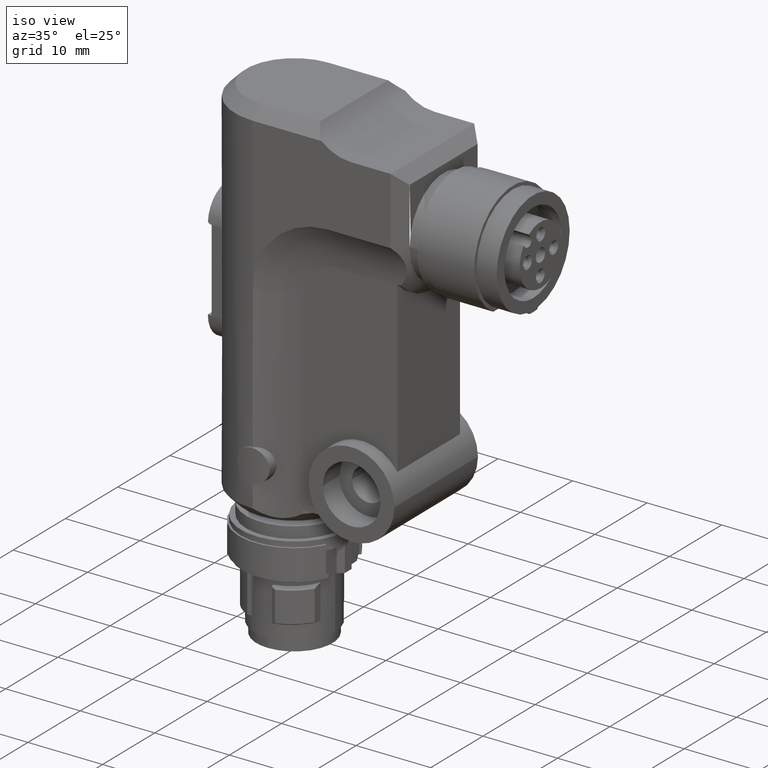
[diagram: clean part render]
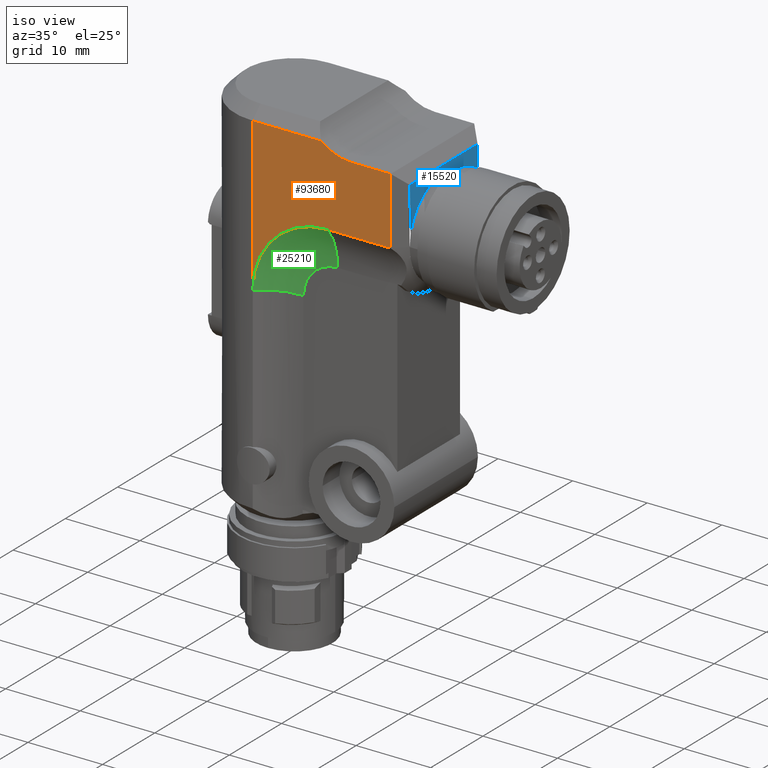
[diagram: same view with three faces highlighted in distinct colors, each labeled with its STEP entity id]
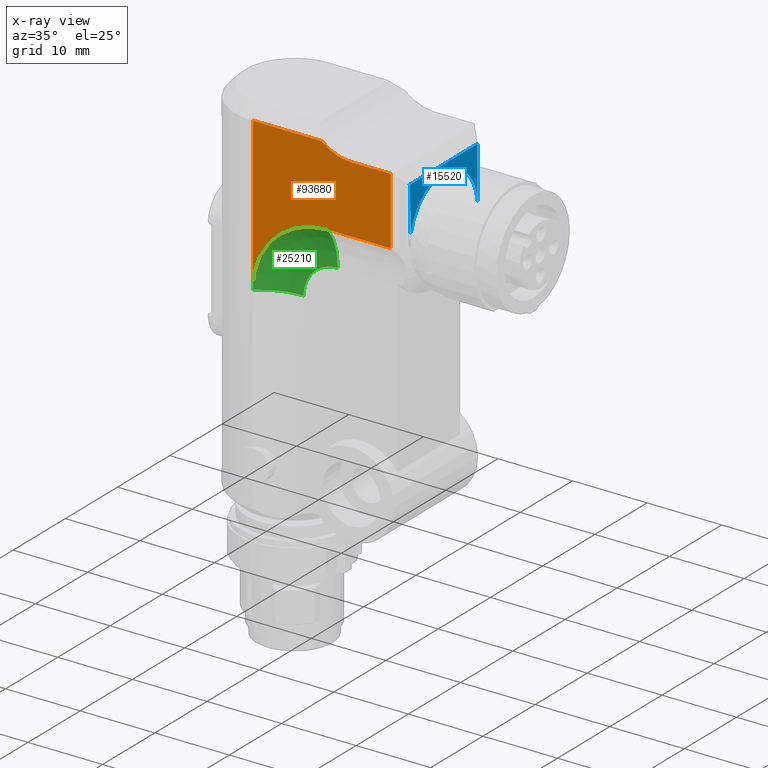
[diagram: x-ray of the same camera — body ghosted, the three highlighted faces saturated]
A machine part, iso view with three faces highlighted in distinct colors.
The next image is the same camera in x-ray (body ghosted, the three faces saturated) — at least one of them is partly hidden behind the body in this view.
Their STEP definitions:

[orange] entity #93680 — the highlighted planar face has unit normal (0, -1, 0).
#4860=CARTESIAN_POINT('',(8.,3.5527136788005E-15,0.));
#4870=DIRECTION('',(0.,0.,-1.));
#4880=VECTOR('',#4870,1.);
#4890=LINE('',#4860,#4880);
#4900=CARTESIAN_POINT('',(8.,5.28330100839187E-15,48.5));
#4910=VERTEX_POINT('',#4900);
#4920=CARTESIAN_POINT('',(8.,1.95399252334028E-14,28.0000000000002));
#4930=VERTEX_POINT('',#4920);
#4940=EDGE_CURVE('',#4910,#4930,#4890,.T.);
#9790=CARTESIAN_POINT('',(8.,18.5,38.));
#9800=VERTEX_POINT('',#9790);
#9830=CARTESIAN_POINT('',(8.,18.5,0.));
#9840=DIRECTION('',(0.,0.,-1.));
#9850=VECTOR('',#9840,1.);
#9860=LINE('',#9830,#9850);
#9870=CARTESIAN_POINT('',(8.,18.5,47.));
#9880=VERTEX_POINT('',#9870);
#9890=EDGE_CURVE('',#9880,#9800,#9860,.T.);
#18730=CARTESIAN_POINT('',(8.,13.1961524227066,47.));
#18740=VERTEX_POINT('',#18730);
#18860=CARTESIAN_POINT('',(8.,0.,47.));
#18870=DIRECTION('',(0.,-1.,0.));
#18880=VECTOR('',#18870,1.);
#18890=LINE('',#18860,#18880);
#18900=EDGE_CURVE('',#9880,#18740,#18890,.T.);
#19180=CARTESIAN_POINT('',(8.,13.1961524227066,53.));
#19190=DIRECTION('',(-1.,0.,0.));
#19200=DIRECTION('',(0.,1.,0.));
#19210=AXIS2_PLACEMENT_3D('',#19180,#19190,#19200);
#19220=CIRCLE('',#19210,5.99999999999996);
#19230=CARTESIAN_POINT('',(8.,9.2275254561098,48.5));
#19240=VERTEX_POINT('',#19230);
#19250=EDGE_CURVE('',#18740,#19240,#19220,.T.);
#23710=CARTESIAN_POINT('',(8.,20.,38.));
#23720=DIRECTION('',(0.,1.,0.));
#23730=VECTOR('',#23720,1.);
#23740=LINE('',#23710,#23730);
#23750=CARTESIAN_POINT('',(8.,10.0002770649337,38.));
#23760=VERTEX_POINT('',#23750);
#23770=EDGE_CURVE('',#23760,#9800,#23740,.T.);
#25030=CARTESIAN_POINT('',(8.,10.,28.));
#25040=DIRECTION('',(1.,4.93038065763133E-31,2.52970265222012E-16));
#25050=DIRECTION('',(7.62657342238343E-31,-1.,-1.06581410364015E-15));
#25060=AXIS2_PLACEMENT_3D('',#25030,#25040,#25050);
#25070=CIRCLE('',#25060,9.99999999999999);
#25080=EDGE_CURVE('',#23760,#4930,#25070,.T.);
#78660=CARTESIAN_POINT('',(8.,0.,48.5));
#78670=DIRECTION('',(0.,-1.,0.));
#78680=VECTOR('',#78670,1.);
#78690=LINE('',#78660,#78680);
#78700=EDGE_CURVE('',#19240,#4910,#78690,.T.);
#93540=CARTESIAN_POINT('',(8.,7.46028462077985,13.0533067988253));
#93550=DIRECTION('',(1.,0.,0.));
#93560=DIRECTION('',(0.,-1.,0.));
#93570=AXIS2_PLACEMENT_3D('',#93540,#93550,#93560);
#93580=PLANE('',#93570);
#93590=ORIENTED_EDGE('',*,*,#4940,.T.);
#93600=ORIENTED_EDGE('',*,*,#78700,.T.);
#93610=ORIENTED_EDGE('',*,*,#19250,.T.);
#93620=ORIENTED_EDGE('',*,*,#18900,.T.);
#93630=ORIENTED_EDGE('',*,*,#9890,.F.);
#93640=ORIENTED_EDGE('',*,*,#23770,.T.);
#93650=ORIENTED_EDGE('',*,*,#25080,.F.);
#93660=EDGE_LOOP('',(#93650,#93640,#93630,#93620,#93610,#93600,#93590));
#93670=FACE_OUTER_BOUND('',#93660,.T.);
#93680=ADVANCED_FACE('',(#93670),#93580,.T.);

[blue] entity #15520 — the highlighted planar face has unit normal (1, -0, -0).
#9700=CARTESIAN_POINT('',(6.50000000000016,20.,38.0000000000001));
#9710=VERTEX_POINT('',#9700);
#9950=CARTESIAN_POINT('',(6.50000000000004,20.,45.5));
#9960=VERTEX_POINT('',#9950);
#9990=CARTESIAN_POINT('',(6.50000000000003,20.,0.));
#10000=DIRECTION('',(0.,0.,-1.));
#10010=VECTOR('',#10000,1.);
#10020=LINE('',#9990,#10010);
#10030=EDGE_CURVE('',#9960,#9710,#10020,.T.);
#10930=CARTESIAN_POINT('',(-6.50000000000004,20.,45.5));
#10940=VERTEX_POINT('',#10930);
#10990=CARTESIAN_POINT('',(0.,20.,45.5));
#11000=DIRECTION('',(-1.,0.,0.));
#11010=VECTOR('',#11000,1.);
#11020=LINE('',#10990,#11010);
#11030=EDGE_CURVE('',#9960,#10940,#11020,.T.);
#15150=CARTESIAN_POINT('',(0.0100000000000432,20.,45.51));
#15160=DIRECTION('',(3.08395284618109E-17,1.,-1.88064205402298E-31));
#15170=DIRECTION('',(-1.,3.08395284618109E-17,8.91609571378369E-16));
#15180=AXIS2_PLACEMENT_3D('',#15150,#15160,#15170);
#15190=PLANE('',#15180);
#15200=CARTESIAN_POINT('',(-6.50000000000003,20.,0.));
#15210=DIRECTION('',(0.,0.,-1.));
#15220=VECTOR('',#15210,1.);
#15230=LINE('',#15200,#15220);
#15240=CARTESIAN_POINT('',(-6.4999999999953,20.0000000000047,
38.0739014335624));
#15250=VERTEX_POINT('',#15240);
#15260=EDGE_CURVE('',#10940,#15250,#15230,.T.);
#15270=ORIENTED_EDGE('',*,*,#15260,.F.);
#15280=CARTESIAN_POINT('',(-0.000420094587878143,20.,38.0000024938721));
#15290=DIRECTION('',(-1.47502265444277E-12,-1.,5.13196406003235E-13));
#15300=DIRECTION('',(-0.999982379698218,1.47804317938856E-12,
0.00593635351778232));
#15310=AXIS2_PLACEMENT_3D('',#15280,#15290,#15300);
#15320=CIRCLE('',#15310,6.5);
#15330=CARTESIAN_POINT('',(6.49946537345055,19.9999999999904,
37.9614161960065));
#15340=VERTEX_POINT('',#15330);
#15350=EDGE_CURVE('',#15340,#15250,#15320,.T.);
#15360=ORIENTED_EDGE('',*,*,#15350,.T.);
#15370=CARTESIAN_POINT('',(-0.0387963689851006,20.,31.5001157824346));
#15380=VERTEX_POINT('',#15370);
#15390=EDGE_CURVE('',#15380,#15340,#15320,.T.);
#15400=ORIENTED_EDGE('',*,*,#15390,.T.);
#15410=CARTESIAN_POINT('',(-2.79776202205539E-14,20.,38.0000000000001));
#15420=DIRECTION('',(0.,1.,0.));
#15430=DIRECTION('',(1.,0.,0.));
#15440=AXIS2_PLACEMENT_3D('',#15410,#15420,#15430);
#15450=CIRCLE('',#15440,6.50000000000019);
#15460=EDGE_CURVE('',#9710,#15380,#15450,.T.);
#15470=ORIENTED_EDGE('',*,*,#15460,.T.);
#15480=ORIENTED_EDGE('',*,*,#10030,.T.);
#15490=ORIENTED_EDGE('',*,*,#11030,.F.);
#15500=EDGE_LOOP('',(#15490,#15480,#15470,#15400,#15360,#15270));
#15510=FACE_OUTER_BOUND('',#15500,.T.);
#15520=ADVANCED_FACE('',(#15510),#15190,.T.);

[green] entity #25210 — the highlighted toroidal blend (fillet) surface has major radius 4.7085 mm and minor (blend) radius 8 mm.
#4920=CARTESIAN_POINT('',(8.,1.95399252334028E-14,28.0000000000002));
#4930=VERTEX_POINT('',#4920);
#19460=CARTESIAN_POINT('',(6.001,9.99979125739767,32.5820102196181));
#19470=VERTEX_POINT('',#19460);
#19590=CARTESIAN_POINT('',(6.001,5.41798977562713,28.));
#19600=VERTEX_POINT('',#19590);
#19630=CARTESIAN_POINT('',(6.001,10.,28.));
#19640=DIRECTION('',(1.,4.93038065763133E-31,2.52970265222012E-16));
#19650=DIRECTION('',(6.89181434628495E-31,-1.,-7.75361359933837E-16));
#19660=AXIS2_PLACEMENT_3D('',#19630,#19640,#19650);
#19670=CIRCLE('',#19660,4.58201022437288);
#19680=EDGE_CURVE('',#19470,#19600,#19670,.T.);
#23750=CARTESIAN_POINT('',(8.,10.0002770649337,38.));
#23760=VERTEX_POINT('',#23750);
#23840=CARTESIAN_POINT('',(6.00100000003759,9.99979125739745,
32.5820102196187));
#23850=CARTESIAN_POINT('',(5.99905382173869,9.99982995645565,
32.705085804937));
#23860=CARTESIAN_POINT('',(5.99994867765351,9.99987293733984,
32.828206304562));
#23870=CARTESIAN_POINT('',(6.00741855247489,9.9999416893582,
33.0742748950549));
#23880=CARTESIAN_POINT('',(6.0139935706501,9.99998031360968,
33.197222964229));
#23890=CARTESIAN_POINT('',(6.03280976489689,10.0000145668233,
33.4426847832188));
#23900=CARTESIAN_POINT('',(6.04505093951465,10.0000034832919,
33.5651985123745));
#23910=CARTESIAN_POINT('',(6.07517336984668,10.000003164731,
33.8095306520644));
#23920=CARTESIAN_POINT('',(6.09305462338901,9.99998784022165,
33.9313490451102));
#23930=CARTESIAN_POINT('',(6.13441911989041,10.0000051295244,
34.1740310031544));
#23940=CARTESIAN_POINT('',(6.15790235980249,10.0000031307206,
34.2948945507291));
#23950=CARTESIAN_POINT('',(6.21042080415018,10.0000033600064,
34.535409346209));
#23960=CARTESIAN_POINT('',(6.23945600463287,9.99999708341326,
34.6550605760345));
#23970=CARTESIAN_POINT('',(6.30301651773078,9.99999726155898,
34.8928958447571));
#23980=CARTESIAN_POINT('',(6.33754182550243,9.99998959980582,
35.0110798655396));
#23990=CARTESIAN_POINT('',(6.4120090052059,9.99998972643202,
35.2457289501405));
#24000=CARTESIAN_POINT('',(6.45195087156336,9.99998719750533,
35.362193996363));
#24010=CARTESIAN_POINT('',(6.53716607528146,10.0000079069529,
35.5931570105143));
#24020=CARTESIAN_POINT('',(6.58243940593027,10.0000054660543,
35.7076549625138));
#24030=CARTESIAN_POINT('',(6.67822109873548,10.0000060291648,
35.9344398921221));
#24040=CARTESIAN_POINT('',(6.72872945371148,9.99999868759005,
36.0467268527483));
#24050=CARTESIAN_POINT('',(6.83487359889803,9.99999979433313,
36.2688505963713));
#24060=CARTESIAN_POINT('',(6.89050938103589,9.99999251853106,
36.3786873624767));
#24070=CARTESIAN_POINT('',(7.00678986114148,9.999994166549,
36.5956767328744));
#24080=CARTESIAN_POINT('',(7.06743455043353,9.99999247046112,
36.7028293209606));
#24090=CARTESIAN_POINT('',(7.19360365580004,10.000015896059,
36.9142220705251));
#24100=CARTESIAN_POINT('',(7.25912806331595,9.99999579385313,
37.0184622174198));
#24110=CARTESIAN_POINT('',(7.39491701910121,9.99999569915178,
37.2238080205846));
#24120=CARTESIAN_POINT('',(7.46518155811158,9.99998112678352,
37.3249136628141));
#24130=CARTESIAN_POINT('',(7.61030109603004,10.0000266717316,
37.5237750752719));
#24140=CARTESIAN_POINT('',(7.68515609385633,9.99995834020489,
37.6215308426702));
#24150=CARTESIAN_POINT('',(7.83929706275127,10.0000494277808,
37.8134842244057));
#24160=CARTESIAN_POINT('',(7.91858299901242,10.0001859722753,
37.9076817990195));
#24170=CARTESIAN_POINT('',(8.00000000095203,10.0002770649338,
37.9999999991604));
#24180=B_SPLINE_CURVE_WITH_KNOTS('',3,(#23840,#23850,#23860,#23870,
#23880,#23890,#23900,#23910,#23920,#23930,#23940,#23950,#23960,#23970,
#23980,#23990,#24000,#24010,#24020,#24030,#24040,#24050,#24060,#24070,
#24080,#24090,#24100,#24110,#24120,#24130,#24140,#24150,#24160,#24170),
.UNSPECIFIED.,.F.,.F.,(4,2,2,2,2,2,2,2,2,2,2,2,2,2,2,2,4),(0.,
0.360937443132483,0.721874886264965,1.08281232939745,1.44374977252993,
1.80468721566241,2.1656246587949,2.52656210192738,2.88749954505986,
3.24843698819234,3.60937443132483,3.97031187445731,4.33124931758979,
4.69218676072227,5.05312420385476,5.41406164698724,5.77499909011972),
.UNSPECIFIED.);
#24190=EDGE_CURVE('',#19470,#23760,#24180,.T.);
#24980=CARTESIAN_POINT('',(14.,10.,28.));
#24990=DIRECTION('',(1.,4.93038065763133E-31,2.52970265222012E-16));
#25000=DIRECTION('',(7.13845243878985E-31,-1.,-8.38662567217461E-16));
#25010=AXIS2_PLACEMENT_3D('',#24980,#24990,#25000);
#25020=DEGENERATE_TOROIDAL_SURFACE('',#25010,4.70849737787081,8.,.T.);
#25030=CARTESIAN_POINT('',(8.,10.,28.));
#25040=DIRECTION('',(1.,4.93038065763133E-31,2.52970265222012E-16));
#25050=DIRECTION('',(7.62657342238343E-31,-1.,-1.06581410364015E-15));
#25060=AXIS2_PLACEMENT_3D('',#25030,#25040,#25050);
#25070=CIRCLE('',#25060,9.99999999999999);
#25080=EDGE_CURVE('',#23760,#4930,#25070,.T.);
#25090=ORIENTED_EDGE('',*,*,#25080,.T.);
#25100=ORIENTED_EDGE('',*,*,#24190,.T.);
#25110=ORIENTED_EDGE('',*,*,#19680,.F.);
#25120=CARTESIAN_POINT('',(14.,5.2915026221292,28.));
#25130=DIRECTION('',(2.52970265222012E-16,0.,-1.));
#25140=DIRECTION('',(4.93038065763133E-31,-1.,1.24723970260648E-46));
#25150=AXIS2_PLACEMENT_3D('',#25120,#25130,#25140);
#25160=CIRCLE('',#25150,8.);
#25170=EDGE_CURVE('',#4930,#19600,#25160,.T.);
#25180=ORIENTED_EDGE('',*,*,#25170,.T.);
#25190=EDGE_LOOP('',(#25180,#25110,#25100,#25090));
#25200=FACE_OUTER_BOUND('',#25190,.T.);
#25210=ADVANCED_FACE('',(#25200),#25020,.F.);